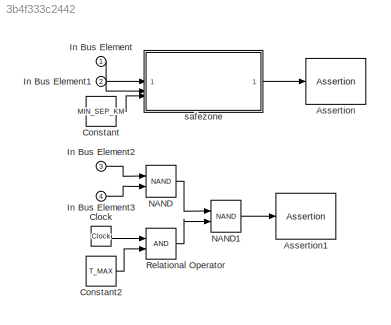
MODEL slx_3b4f333c2442
KIND model
CONFIG AbsTol = auto
CONFIG EnableMultiTasking = off
CONFIG FixedStep = 0.1
CONFIG MaxStep = auto
CONFIG MinStep = auto
CONFIG RelTol = 1e-3
CONFIG SampleTimeConstraint = Unconstrained
CONFIG SolverName = FixedStepDiscrete
CONFIG StartTime = 0.0
CONFIG StopTime = 10.0
BLOCK [Assertion] Assertion
BLOCK [Assertion] Assertion1
BLOCK [Clock] Clock
  Decimation = 200
BLOCK [Constant] Constant
  Value = MIN_SEP_KM
BLOCK [Constant] Constant2
  Value = T_MAX
BLOCK [Inport] In Bus Element
BLOCK [Inport] In Bus Element1
  Port = 2
BLOCK [Inport] In Bus Element2
  Port = 3
BLOCK [Inport] In Bus Element3
  Port = 4
BLOCK [Logic] NAND
  AllPortsSameDT = off
  IconShape = distinctive
  Operator = NAND
  OutDataTypeStr = boolean
BLOCK [Logic] NAND1
  AllPortsSameDT = off
  IconShape = distinctive
  Operator = NAND
  OutDataTypeStr = boolean
BLOCK [RelationalOperator] Relational Operator
  InputSameDT = off
  OutDataTypeStr = boolean
  RndMeth = Simplest
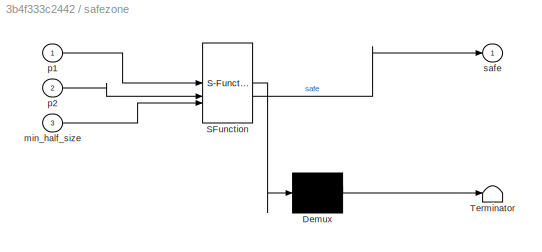
BLOCK [SubSystem] safezone
  ErrorFcn = Stateflow.Translate.translate
  PermitHierarchicalResolution = ExplicitOnly
  SFBlockType = MATLAB Function
  TreatAsAtomicUnit = on
BLOCK [Demux] safezone/ Demux 
  Outputs = 1
BLOCK [S-Function] safezone/ SFunction 
  EnableBusSupport = on
  FunctionName = sf_sfun
  PortCounts = [3 2]
  SFcnIsStateOwnerBlock = off
  SFunctionDeploymentMode = off
  Tag = Stateflow S-Function 2
BLOCK [Terminator] safezone/ Terminator 
BLOCK [Inport] safezone/min_half_size
  Port = 3
BLOCK [Inport] safezone/p1
BLOCK [Inport] safezone/p2
  Port = 2
BLOCK [Outport] safezone/safe
LINE Clock:1 -> Relational Operator:1
LINE Constant2:1 -> Relational Operator:2
LINE Constant:1 -> safezone:3
LINE In Bus Element1:1 -> safezone:2
LINE In Bus Element2:1 -> NAND:1
LINE In Bus Element3:1 -> NAND:2
LINE In Bus Element:1 -> safezone:1
LINE NAND1:1 -> Assertion1:1
LINE NAND:1 -> NAND1:1
LINE Relational Operator:1 -> NAND1:2
LINE safezone:1 -> Assertion:1
CHART safezone states=1 transitions=1
  STATE_LABEL 'eML_blk_kernel()'
  STATE_LABEL 'SCRIPT:\nfunction safe = separation_ok(p1, p2, min_half_size)\n%#codegen\n% p1, p2 = [x,y] coordinates (1x2)\ndx = abs(round(p1(1) - p2(1)));\ndy = abs(round(p1(2) - p2(2)));\n\n% Safe if not BOTH within the danger half-size\nsafe = ~(dx < min_half_size && dy < min_half_size);\nend\n'
CHART  states=0 transitions=0
